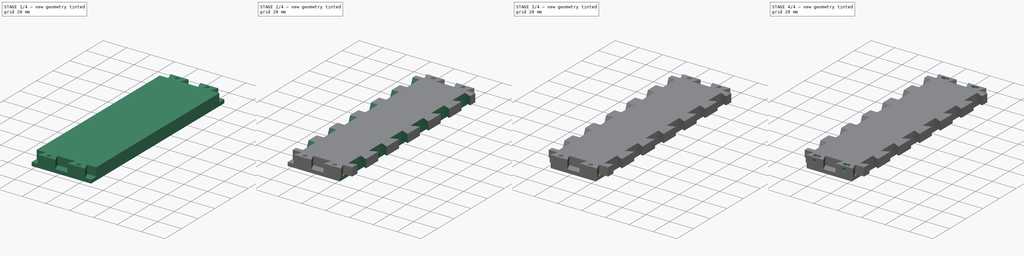
[diagram: build sequence overview — one tinted view per stage of 4, left to right]
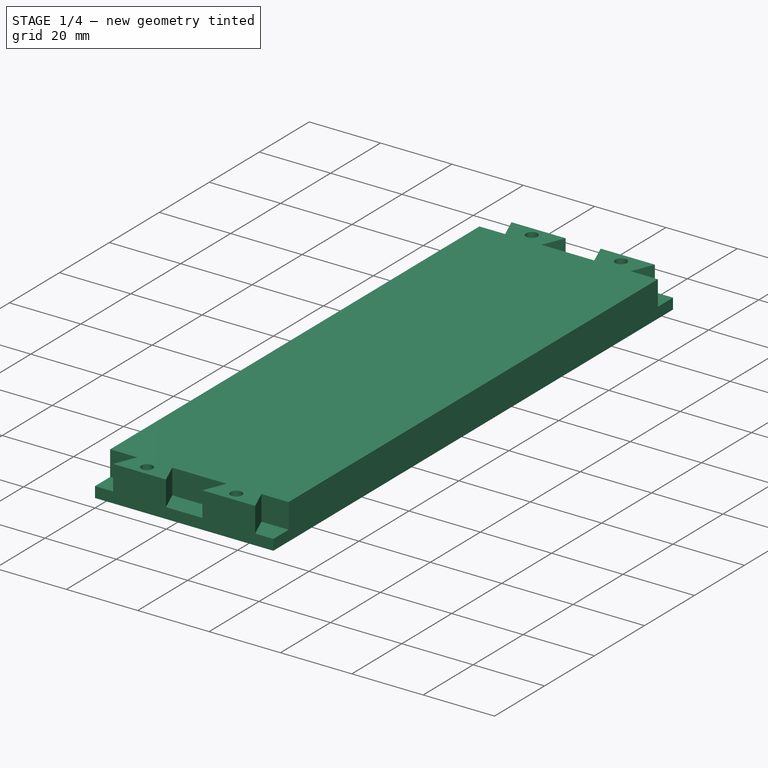
[diagram: stage 1 of 4 — iso view after this stage's code; geometry added in this stage tinted green]
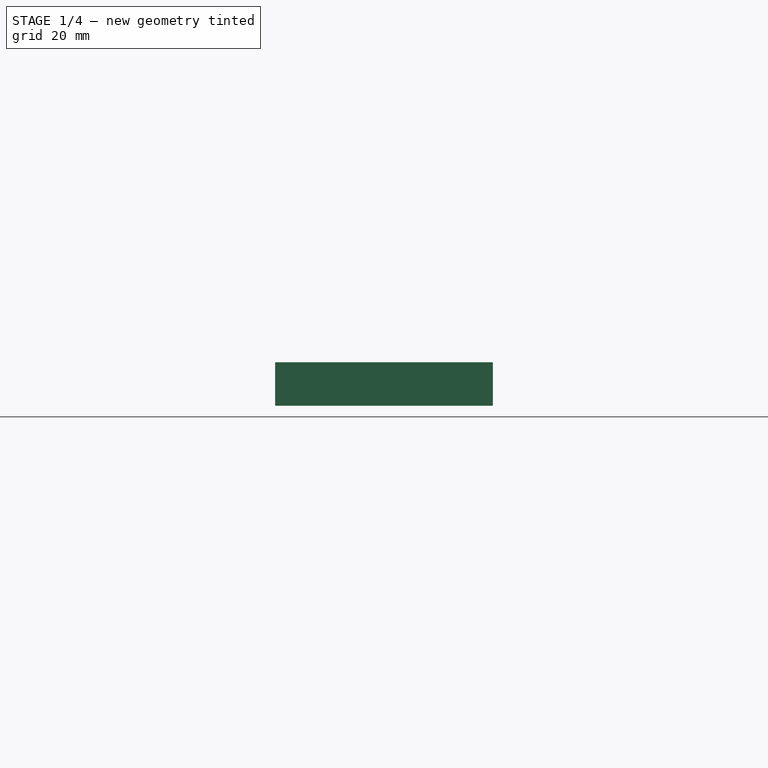
[diagram: stage 1 of 4 — front view after this stage's code; geometry added in this stage tinted green]
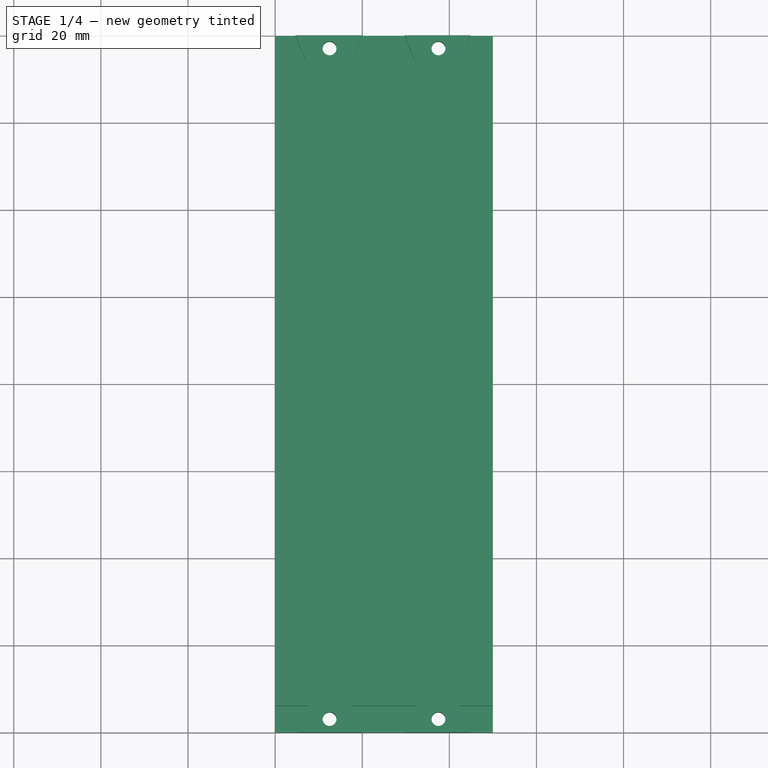
[diagram: stage 1 of 4 — top view after this stage's code; geometry added in this stage tinted green]
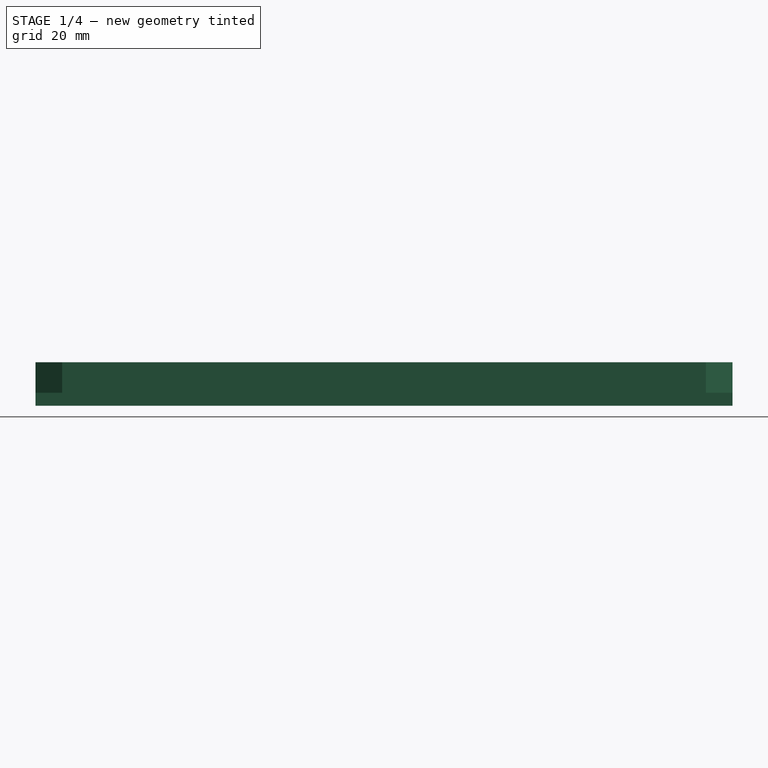
[diagram: stage 1 of 4 — right view after this stage's code; geometry added in this stage tinted green]
FCSTD DOCUMENT  (FreeCAD 0.17R13541 (Git))
Label: cross_beam_160
License: All rights reserved
LicenseURL: http://en.wikipedia.org/wiki/All_rights_reserved
objects: Sketcher::SketchObject×11, PartDesign::Pocket×10, PartDesign::Pad×1, PartDesign::Body×1
note: 34 computed .brp shape members not serialized (recipe doc carries the construction recipe); baked Part::Feature solids carry a one-line shape summary decoded from their .brp

FEATURE [Sketcher::SketchObject] Sketch
  MapMode = 5
  Support = -> [XY_Plane]
  sketch-geometry (4):
    g0: LineSegment StartX=0 StartY=160 StartZ=0 EndX=50 EndY=160 EndZ=0
    g1: LineSegment StartX=50 StartY=160 StartZ=0 EndX=50 EndY=0 EndZ=0
    g2: LineSegment StartX=50 StartY=0 StartZ=0 EndX=0 EndY=0 EndZ=0
    g3: LineSegment StartX=0 StartY=0 StartZ=0 EndX=0 EndY=160 EndZ=0
  constraints (11):
    c: Coincident(g0,g1)
    c: Coincident(g1,g2)
    c: Coincident(g2,g3)
    c: Coincident(g3,g0)
    c: Horizontal(g0)
    c: Horizontal(g2)
    c: Vertical(g1)
    c: Vertical(g3)
    c: Coincident(g2,g-1)
    c: DistanceX(g0,g0) = 50
    c: DistanceY(g3,g3) = 160
FEATURE [PartDesign::Pad] Pad
  Length = 10
  Length2 = 100
  Profile = -> Sketch
  Type = 0
FEATURE [Sketcher::SketchObject] Sketch001
  ExternalGeometry = -> [Pad]
  MapMode = 5
  Placement = pos=(0,0,10) rot=(0,0,1;0rad)
  Support = -> [Pad]
  sketch-geometry (24):
    g0: LineSegment StartX=17.4 StartY=6.1 StartZ=0 EndX=32.6 EndY=6.1 EndZ=0
    g1: LineSegment StartX=19.9 StartY=0 StartZ=0 EndX=30.1 EndY=0 EndZ=0
    g2: LineSegment StartX=17.4 StartY=6.1 StartZ=0 EndX=19.9 EndY=0 EndZ=0
    g3: LineSegment StartX=32.6 StartY=6.1 StartZ=0 EndX=30.1 EndY=0 EndZ=0
    g4: LineSegment StartX=42.4 StartY=6.1 StartZ=0 EndX=57.6 EndY=6.1 EndZ=0
    g5: LineSegment StartX=44.9 StartY=0 StartZ=0 EndX=55.1 EndY=0 EndZ=0
    g6: LineSegment StartX=42.4 StartY=6.1 StartZ=0 EndX=44.9 EndY=0 EndZ=0
    g7: LineSegment StartX=57.6 StartY=6.1 StartZ=0 EndX=55.1 EndY=0 EndZ=0
    g8: LineSegment StartX=-7.6 StartY=6.1 StartZ=0 EndX=7.6 EndY=6.1 EndZ=0
    g9: LineSegment StartX=-5.1 StartY=0 StartZ=0 EndX=5.1 EndY=0 EndZ=0
    g10: LineSegment StartX=-7.6 StartY=6.1 StartZ=0 EndX=-5.1 EndY=0 EndZ=0
    g11: LineSegment StartX=7.6 StartY=6.1 StartZ=0 EndX=5.1 EndY=0 EndZ=0
    g12: LineSegment StartX=32.2 StartY=153.9 StartZ=0 EndX=17.4 EndY=153.9 EndZ=0
    g13: LineSegment StartX=29.7 StartY=160 StartZ=0 EndX=19.9 EndY=160 EndZ=0
    g14: LineSegment StartX=32.2 StartY=153.9 StartZ=0 EndX=29.7 EndY=160 EndZ=0
    g15: LineSegment StartX=17.4 StartY=153.9 StartZ=0 EndX=19.9 EndY=160 EndZ=0
    g16: LineSegment StartX=7.2 StartY=153.9 StartZ=0 EndX=-7.6 EndY=153.9 EndZ=0
    g17: LineSegment StartX=4.7 StartY=160 StartZ=0 EndX=-5.1 EndY=160 EndZ=0
    g18: LineSegment StartX=7.2 StartY=153.9 StartZ=0 EndX=4.7 EndY=160 EndZ=0
    g19: LineSegment StartX=-7.6 StartY=153.9 StartZ=0 EndX=-5.1 EndY=160 EndZ=0
    g20: LineSegment StartX=57.2 StartY=153.9 StartZ=0 EndX=42.4 EndY=153.9 EndZ=0
    g21: LineSegment StartX=54.7 StartY=160 StartZ=0 EndX=44.9 EndY=160 EndZ=0
    g22: LineSegment StartX=57.2 StartY=153.9 StartZ=0 EndX=54.7 EndY=160 EndZ=0
    g23: LineSegment StartX=42.4 StartY=153.9 StartZ=0 EndX=44.9 EndY=160 EndZ=0
  constraints (73):
    c: Horizontal(g0)
    c: Horizontal(g1)
    c: Coincident(g0,g2)
    c: Coincident(g0,g3)
    c: Coincident(g1,g2)
    c: Coincident(g1,g3)
    c: DistanceX(g0,g0) = 15.2
    c: DistanceX(g1,g1) = 10.2
    c: DistanceY(g1,g0) = 6.1
    c: Equal(g3,g2)
    c: Horizontal(g4)
    c: Horizontal(g5)
    c: Coincident(g4,g6)
    c: Coincident(g4,g7)
    c: Coincident(g5,g6)
    c: Coincident(g5,g7)
    c: Equal(g0,g4) = 15.2
    c: Equal(g1,g5) = 10.2
    c: DistanceY(g5,g4) = 6.1
    c: Equal(g7,g6)
    c: Horizontal(g8)
    c: Horizontal(g9)
    c: Coincident(g8,g10)
    c: Coincident(g8,g11)
    c: Coincident(g9,g10)
    c: Coincident(g9,g11)
    c: Equal(g0,g8) = 15.2
    c: Equal(g1,g9) = 10.2
    c: DistanceY(g9,g8) = 6.1
    c: Equal(g11,g10)
    c: PointOnObject(g9,g-1)
    c: PointOnObject(g1,g-1)
    c: PointOnObject(g5,g-1)
    c: DistanceX(g0,g4) = 9.8
    c: DistanceX(g8,g0) = 9.8
    c: DistanceX(g-1,g1) = 19.9
    c: Horizontal(g12)
    c: Horizontal(g13)
    c: Coincident(g12,g14)
    c: Coincident(g12,g15)
    c: Coincident(g13,g14)
    c: Coincident(g13,g15)
    c: Horizontal(g16)
    c: Horizontal(g17)
    c: Coincident(g16,g18)
    c: Coincident(g16,g19)
    c: Coincident(g17,g18)
    c: Coincident(g17,g19)
    c: Equal(g12,g16) = 15.2
    c: Equal(g13,g17) = 10.2
    c: Horizontal(g20)
    c: Horizontal(g21)
    c: Coincident(g20,g22)
    c: Coincident(g20,g23)
    c: Coincident(g21,g22)
    c: Coincident(g21,g23)
    c: Equal(g12,g20) = 15.2
    c: Equal(g13,g21) = 10.2
    c: PointOnObject(g17,g-4)
    c: PointOnObject(g13,g-4)
    c: PointOnObject(g21,g-4)
    c: DistanceX(g17,g13) = 15.2
    c: DistanceX(g13,g21) = 15.2
    c: DistanceX(g12,g20) = 10.2
    c: DistanceX(g16,g12) = 10.2
    c: Equal(g19,g18)
    c: Equal(g18,g15)
    c: Equal(g15,g14)
    c: Equal(g14,g23)
    c: Equal(g23,g22)
    c: DistanceY(g16,g-4) = 6.1
    c: DistanceX(g17,g17) = 9.8
    c: DistanceX(g-4,g13) = 19.9
FEATURE [PartDesign::Pocket] Pocket
  BaseFeature = -> Pad
  Length = 7
  Length2 = 100
  Profile = -> Sketch001
  Type = 0
FEATURE [Sketcher::SketchObject] Sketch003
  MapMode = 5
  Placement = pos=(0,0,10) rot=(0,0,1;0rad)
  sketch-geometry (4):
    g0: Circle CenterX=12.5 CenterY=157 CenterZ=0 NormalX=0 NormalY=0 NormalZ=1 AngleXU=0 Radius=1.6
    g1: Circle CenterX=37.5 CenterY=157 CenterZ=0 NormalX=0 NormalY=0 NormalZ=1 AngleXU=0 Radius=1.6
    g2: Circle CenterX=12.5 CenterY=3 CenterZ=0 NormalX=0 NormalY=0 NormalZ=1 AngleXU=0 Radius=1.6
    g3: Circle CenterX=37.5 CenterY=3 CenterZ=0 NormalX=0 NormalY=0 NormalZ=1 AngleXU=0 Radius=1.6
  constraints (10):
    c: Radius(g2) = 1.6
    c: Equal(g2,g3)
    c: Equal(g2,g0)
    c: Equal(g2,g1)
    c: Horizontal(g2,g3)
    c: Horizontal(g0,g1)
    c: DistanceX(g0,g1) = 25
    c: DistanceX(g2,g3) = 25
    c: DistanceY(g-1,g2) = 3
    c: DistanceX(g-1,g2) = 12.5
FEATURE [PartDesign::Pocket] Pocket002
  BaseFeature = -> Pocket
  Length = 10
  Length2 = 100
  Profile = -> Sketch003
  Type = 0
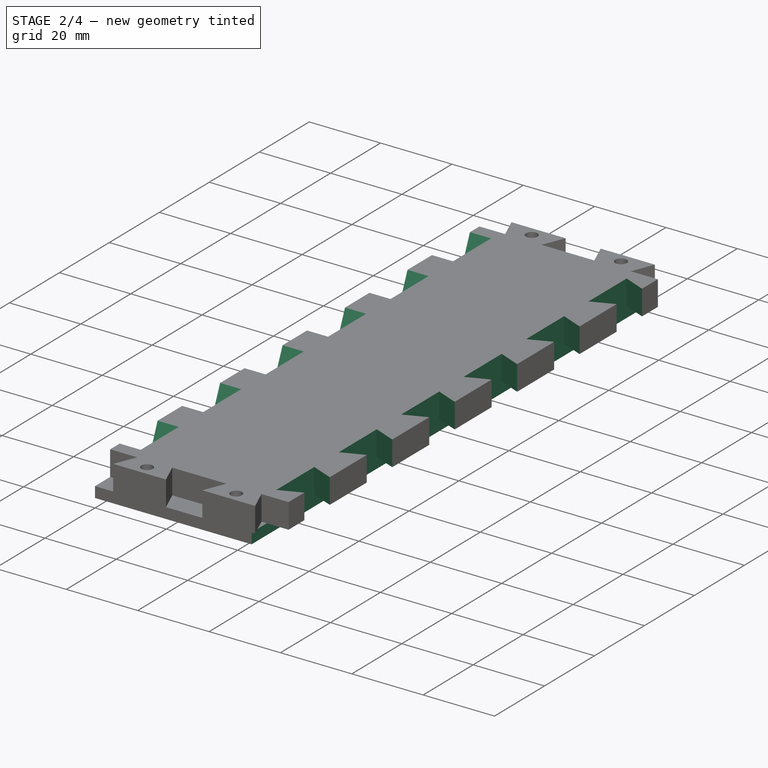
[diagram: stage 2 of 4 — iso view after this stage's code; geometry added in this stage tinted green]
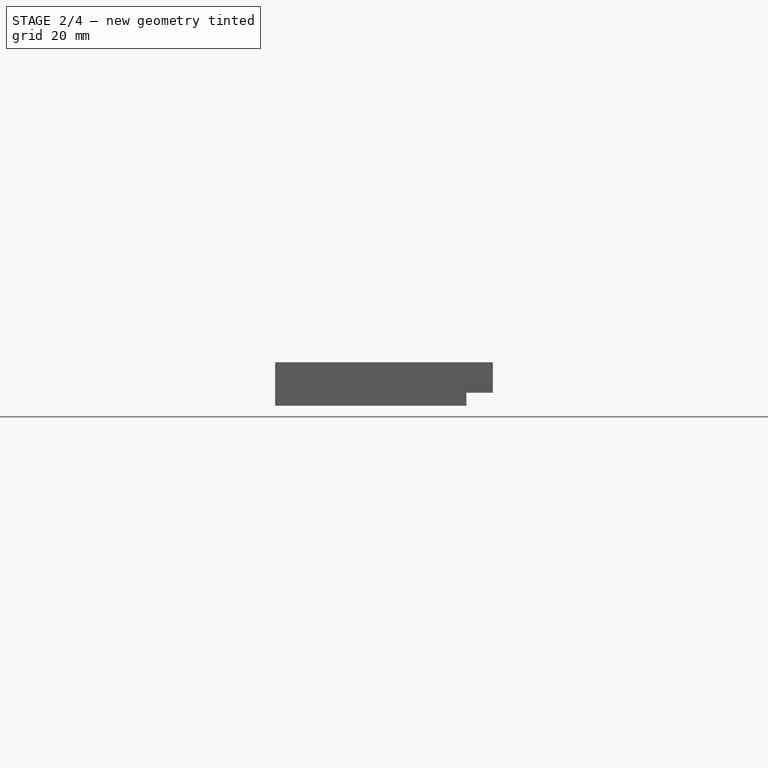
[diagram: stage 2 of 4 — front view after this stage's code; geometry added in this stage tinted green]
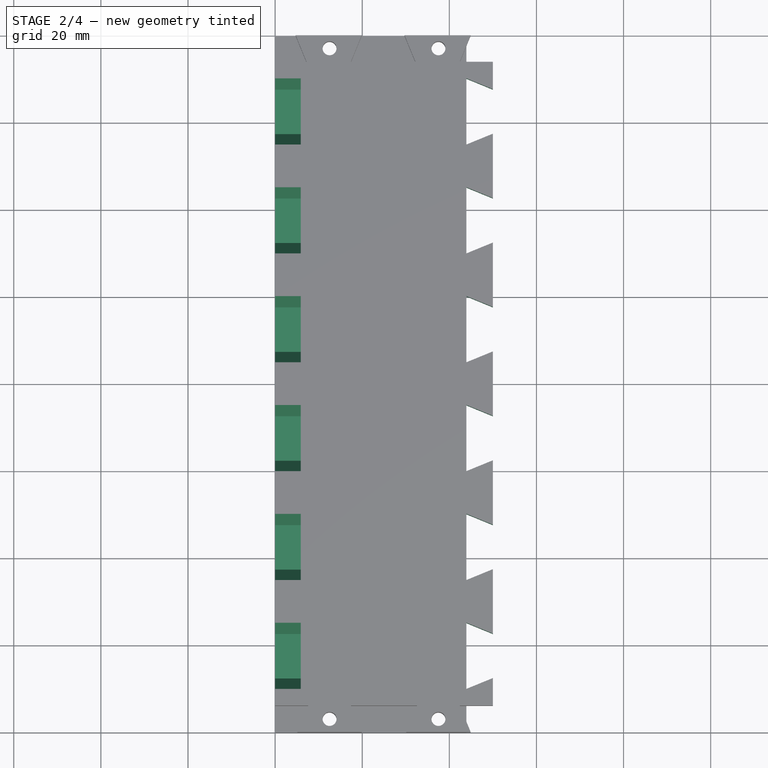
[diagram: stage 2 of 4 — top view after this stage's code; geometry added in this stage tinted green]
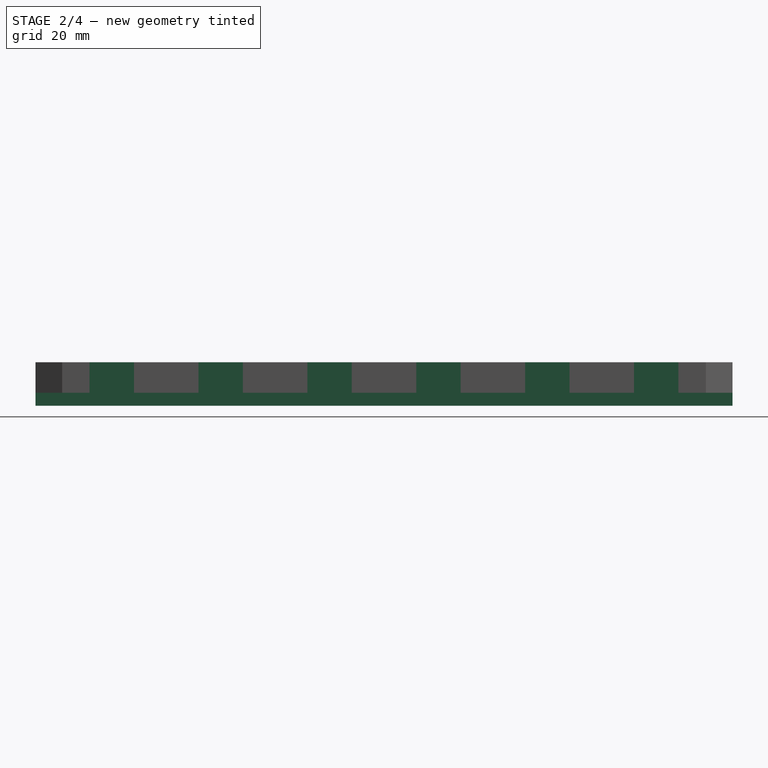
[diagram: stage 2 of 4 — right view after this stage's code; geometry added in this stage tinted green]
FEATURE [Sketcher::SketchObject] Sketch004
  MapMode = 5
  Placement = pos=(0,0,0) rot=(1,0,0;3.14159rad)
  Support = -> [Pocket002]
  sketch-geometry (24):
    g0: LineSegment StartX=43.9 StartY=-84.9 StartZ=0 EndX=43.9 EndY=-100.1 EndZ=0
    g1: LineSegment StartX=50 StartY=-87.4 StartZ=0 EndX=50 EndY=-97.6 EndZ=0
    g2: LineSegment StartX=43.9 StartY=-100.1 StartZ=0 EndX=50 EndY=-97.6 EndZ=0
    g3: LineSegment StartX=43.9 StartY=-84.9 StartZ=0 EndX=50 EndY=-87.4 EndZ=0
    g4: LineSegment StartX=43.9 StartY=-59.9 StartZ=0 EndX=43.9 EndY=-75.1 EndZ=0
    g5: LineSegment StartX=50 StartY=-62.4 StartZ=0 EndX=50 EndY=-72.6 EndZ=0
    g6: LineSegment StartX=43.9 StartY=-75.1 StartZ=0 EndX=50 EndY=-72.6 EndZ=0
    g7: LineSegment StartX=43.9 StartY=-59.9 StartZ=0 EndX=50 EndY=-62.4 EndZ=0
    g8: LineSegment StartX=43.9 StartY=-34.9 StartZ=0 EndX=43.9 EndY=-50.1 EndZ=0
    g9: LineSegment StartX=50 StartY=-37.4 StartZ=0 EndX=50 EndY=-47.6 EndZ=0
    g10: LineSegment StartX=43.9 StartY=-50.1 StartZ=0 EndX=50 EndY=-47.6 EndZ=0
    g11: LineSegment StartX=43.9 StartY=-34.9 StartZ=0 EndX=50 EndY=-37.4 EndZ=0
    g12: LineSegment StartX=43.9 StartY=-9.9 StartZ=0 EndX=43.9 EndY=-25.1 EndZ=0
    g13: LineSegment StartX=50 StartY=-12.4 StartZ=0 EndX=50 EndY=-22.6 EndZ=0
    g14: LineSegment StartX=43.9 StartY=-25.1 StartZ=0 EndX=50 EndY=-22.6 EndZ=0
    g15: LineSegment StartX=43.9 StartY=-9.9 StartZ=0 EndX=50 EndY=-12.4 EndZ=0
    g16: LineSegment StartX=43.9 StartY=-134.9 StartZ=0 EndX=43.9 EndY=-150.1 EndZ=0
    g17: LineSegment StartX=50 StartY=-137.4 StartZ=0 EndX=50 EndY=-147.6 EndZ=0
    g18: LineSegment StartX=43.9 StartY=-150.1 StartZ=0 EndX=50 EndY=-147.6 EndZ=0
    g19: LineSegment StartX=43.9 StartY=-134.9 StartZ=0 EndX=50 EndY=-137.4 EndZ=0
    g20: LineSegment StartX=43.9 StartY=-109.9 StartZ=0 EndX=43.9 EndY=-125.1 EndZ=0
    g21: LineSegment StartX=50 StartY=-112.4 StartZ=0 EndX=50 EndY=-122.6 EndZ=0
    g22: LineSegment StartX=43.9 StartY=-125.1 StartZ=0 EndX=50 EndY=-122.6 EndZ=0
    g23: LineSegment StartX=43.9 StartY=-109.9 StartZ=0 EndX=50 EndY=-112.4 EndZ=0
  constraints (72):
    c: Vertical(g0)
    c: Vertical(g1)
    c: Coincident(g0,g3)
    c: Coincident(g1,g3)
    c: Coincident(g0,g2)
    c: Coincident(g1,g2)
    c: Equal(g2,g3)
    c: DistanceY(g0,g0) = 15.2
    c: DistanceY(g1,g1) = 10.2
    c: DistanceX(g0,g1) = 6.1
    c: Vertical(g4)
    c: Vertical(g5)
    c: Coincident(g4,g7)
    c: Coincident(g5,g7)
    c: Coincident(g4,g6)
    c: Coincident(g5,g6)
    c: Equal(g6,g7)
    c: Equal(g0,g4) = 15.2
    c: Equal(g1,g5) = 10.2
    c: DistanceX(g4,g5) = 6.1
    c: DistanceY(g1,g5) = 25
    c: DistanceX(g5,g1) = 0
    c: Vertical(g8)
    c: Vertical(g9)
    c: Coincident(g8,g11)
    c: Coincident(g9,g11)
    c: Coincident(g8,g10)
    c: Coincident(g9,g10)
    c: Equal(g10,g11)
    c: Equal(g0,g8) = 15.2
    c: Equal(g1,g9) = 10.2
    c: DistanceX(g8,g9) = 6.1
    c: Vertical(g12)
    c: Vertical(g13)
    c: Coincident(g12,g15)
    c: Coincident(g13,g15)
    c: Coincident(g12,g14)
    c: Coincident(g13,g14)
    c: Equal(g14,g15)
    c: Equal(g8,g12) = 15.2
    c: Equal(g9,g13) = 10.2
    c: DistanceX(g12,g13) = 6.1
    c: DistanceY(g9,g13) = 25
    c: DistanceX(g13,g9) = 0
    c: DistanceY(g5,g9) = 25
    c: Vertical(g16)
    c: Vertical(g17)
    c: Coincident(g16,g19)
    c: Coincident(g17,g19)
    c: Coincident(g16,g18)
    c: Coincident(g17,g18)
    c: Equal(g18,g19)
    c: Equal(g0,g16) = 15.2
    c: Equal(g1,g17) = 10.2
    c: DistanceX(g16,g17) = 6.1
    c: Vertical(g20)
    c: Vertical(g21)
    c: Coincident(g20,g23)
    c: Coincident(g21,g23)
    c: Coincident(g20,g22)
    c: Coincident(g21,g22)
    c: Equal(g22,g23)
    c: Equal(g16,g20) = 15.2
    c: Equal(g17,g21) = 10.2
    c: DistanceX(g20,g21) = 6.1
    c: DistanceY(g17,g21) = 25
    c: DistanceX(g21,g17) = 0
    c: DistanceY(g21,g1) = 25
    c: DistanceX(g9,g5) = 0
    c: DistanceX(g1,g21) = 0
    c: DistanceX(g-1,g13) = 50
    c: DistanceY(g4,g-1) = 75.1
FEATURE [PartDesign::Pocket] Pocket003
  BaseFeature = -> Pocket002
  Length = 10
  Length2 = 100
  Profile = -> Sketch004
  Type = 0
FEATURE [Sketcher::SketchObject] Sketch005
  MapMode = 5
  Placement = pos=(0,0,0) rot=(1,0,0;3.14159rad)
  Support = -> [Pocket003]
  sketch-geometry (4):
    g0: LineSegment StartX=43.9 StartY=0 StartZ=0 EndX=50 EndY=0 EndZ=0
    g1: LineSegment StartX=50 StartY=0 StartZ=0 EndX=50 EndY=-160 EndZ=0
    g2: LineSegment StartX=50 StartY=-160 StartZ=0 EndX=43.9 EndY=-160 EndZ=0
    g3: LineSegment StartX=43.9 StartY=-160 StartZ=0 EndX=43.9 EndY=0 EndZ=0
  constraints (12):
    c: Coincident(g0,g1)
    c: Coincident(g1,g2)
    c: Coincident(g2,g3)
    c: Coincident(g3,g0)
    c: Horizontal(g0)
    c: Horizontal(g2)
    c: Vertical(g1)
    c: Vertical(g3)
    c: DistanceX(g0,g0) = 6.1
    c: DistanceY(g3,g3) = 160
    c: DistanceX(g-1,g0) = 50
    c: PointOnObject(g-1,g0)
FEATURE [PartDesign::Pocket] Pocket004
  BaseFeature = -> Pocket003
  Length = 3
  Length2 = 100
  Profile = -> Sketch005
  Type = 0
FEATURE [Sketcher::SketchObject] Sketch006
  MapMode = 5
  Placement = pos=(0,0,0) rot=(0.57735,-0.57735,-0.57735;2.0944rad)
  Support = -> [Pocket004]
  sketch-geometry (24):
    g0: LineSegment StartX=-100.1 StartY=10 StartZ=0 EndX=-84.9 EndY=10 EndZ=0
    g1: LineSegment StartX=-97.6 StartY=4.1 StartZ=0 EndX=-87.4 EndY=4.1 EndZ=0
    g2: LineSegment StartX=-87.4 StartY=4.1 StartZ=0 EndX=-84.9 EndY=10 EndZ=0
    g3: LineSegment StartX=-100.1 StartY=10 StartZ=0 EndX=-97.6 EndY=4.1 EndZ=0
    g4: LineSegment StartX=-75.1 StartY=10 StartZ=0 EndX=-59.9 EndY=10 EndZ=0
    g5: LineSegment StartX=-72.6 StartY=4.1 StartZ=0 EndX=-62.4 EndY=4.1 EndZ=0
    g6: LineSegment StartX=-62.4 StartY=4.1 StartZ=0 EndX=-59.9 EndY=10 EndZ=0
    g7: LineSegment StartX=-75.1 StartY=10 StartZ=0 EndX=-72.6 EndY=4.1 EndZ=0
    g8: LineSegment StartX=-150.1 StartY=10 StartZ=0 EndX=-134.9 EndY=10 EndZ=0
    g9: LineSegment StartX=-147.6 StartY=4.1 StartZ=0 EndX=-137.4 EndY=4.1 EndZ=0
    g10: LineSegment StartX=-137.4 StartY=4.1 StartZ=0 EndX=-134.9 EndY=10 EndZ=0
    g11: LineSegment StartX=-150.1 StartY=10 StartZ=0 EndX=-147.6 EndY=4.1 EndZ=0
    g12: LineSegment StartX=-125.1 StartY=10 StartZ=0 EndX=-109.9 EndY=10 EndZ=0
    g13: LineSegment StartX=-122.6 StartY=4.1 StartZ=0 EndX=-112.4 EndY=4.1 EndZ=0
    g14: LineSegment StartX=-112.4 StartY=4.1 StartZ=0 EndX=-109.9 EndY=10 EndZ=0
    g15: LineSegment StartX=-125.1 StartY=10 StartZ=0 EndX=-122.6 EndY=4.1 EndZ=0
    g16: LineSegment StartX=-50.1 StartY=10 StartZ=0 EndX=-34.9 EndY=10 EndZ=0
    g17: LineSegment StartX=-47.6 StartY=4.1 StartZ=0 EndX=-37.4 EndY=4.1 EndZ=0
    g18: LineSegment StartX=-37.4 StartY=4.1 StartZ=0 EndX=-34.9 EndY=10 EndZ=0
    g19: LineSegment StartX=-50.1 StartY=10 StartZ=0 EndX=-47.6 EndY=4.1 EndZ=0
    g20: LineSegment StartX=-25.1 StartY=10 StartZ=0 EndX=-9.9 EndY=10 EndZ=0
    g21: LineSegment StartX=-22.6 StartY=4.1 StartZ=0 EndX=-12.4 EndY=4.1 EndZ=0
    g22: LineSegment StartX=-12.4 StartY=4.1 StartZ=0 EndX=-9.9 EndY=10 EndZ=0
    g23: LineSegment StartX=-25.1 StartY=10 StartZ=0 EndX=-22.6 EndY=4.1 EndZ=0
  constraints (72):
    c: Horizontal(g0)
    c: Horizontal(g1)
    c: Coincident(g0,g3)
    c: Coincident(g0,g2)
    c: Coincident(g1,g3)
    c: Coincident(g1,g2)
    c: DistanceX(g0,g0) = 15.2
    c: DistanceX(g1,g1) = 10.2
    c: Equal(g3,g2)
    c: DistanceY(g1,g0) = 5.9
    c: Horizontal(g4)
    c: Horizontal(g5)
    c: Coincident(g4,g7)
    c: Coincident(g4,g6)
    c: Coincident(g5,g7)
    c: Coincident(g5,g6)
    c: Equal(g0,g4) = 15.2
    c: Equal(g1,g5) = 10.2
    c: Equal(g7,g6)
    c: DistanceY(g5,g4) = 5.9
    c: DistanceY(g4,g0) = 0
    c: DistanceX(g0,g4) = 25
    c: Horizontal(g8)
    c: Horizontal(g9)
    c: Coincident(g8,g11)
    c: Coincident(g8,g10)
    c: Coincident(g9,g11)
    c: Coincident(g9,g10)
    c: Equal(g0,g8) = 15.2
    c: Equal(g1,g9) = 10.2
    c: Equal(g11,g10)
    c: DistanceY(g9,g8) = 5.9
    c: Horizontal(g12)
    c: Horizontal(g13)
    c: Coincident(g12,g15)
    c: Coincident(g12,g14)
    c: Coincident(g13,g15)
    c: Coincident(g13,g14)
    c: Equal(g8,g12) = 15.2
    c: Equal(g9,g13) = 10.2
    c: Equal(g15,g14)
    c: DistanceY(g13,g12) = 5.9
    c: DistanceY(g12,g8) = 0
    c: DistanceX(g8,g12) = 25
    c: Horizontal(g16)
    c: Horizontal(g17)
    c: Coincident(g16,g19)
    c: Coincident(g16,g18)
    c: Coincident(g17,g19)
    c: Coincident(g17,g18)
    c: Equal(g0,g16) = 15.2
    c: Equal(g1,g17) = 10.2
    c: Equal(g19,g18)
    c: DistanceY(g17,g16) = 5.9
    c: Horizontal(g20)
    c: Horizontal(g21)
    c: Coincident(g20,g23)
    c: Coincident(g20,g22)
    c: Coincident(g21,g23)
    c: Coincident(g21,g22)
    c: Equal(g16,g20) = 15.2
    c: Equal(g17,g21) = 10.2
    c: Equal(g23,g22)
    c: DistanceY(g21,g20) = 5.9
    c: DistanceY(g20,g16) = 0
    c: DistanceX(g16,g20) = 25
    c: DistanceX(g12,g0) = 25
    c: DistanceY(g12,g0) = 0
    c: DistanceX(g4,g16) = 25
    c: DistanceY(g16,g4) = 0
    c: DistanceY(g-1,g20) = 10
    c: DistanceX(g4,g-1) = 75.1
FEATURE [PartDesign::Pocket] Pocket005
  BaseFeature = -> Pocket004
  Length = 5.9
  Length2 = 100
  Profile = -> Sketch006
  Type = 0
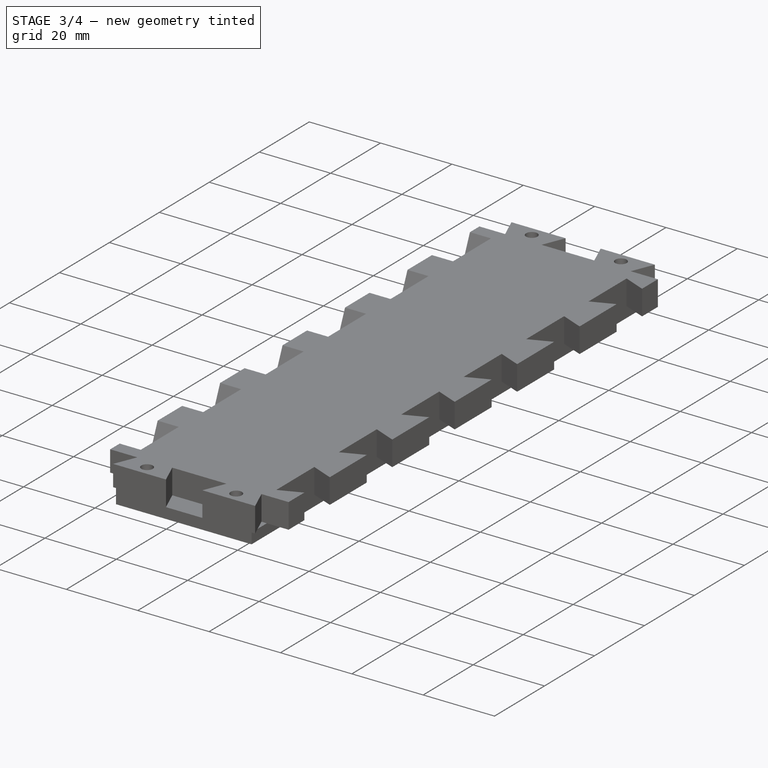
[diagram: stage 3 of 4 — iso view after this stage's code; geometry added in this stage tinted green]
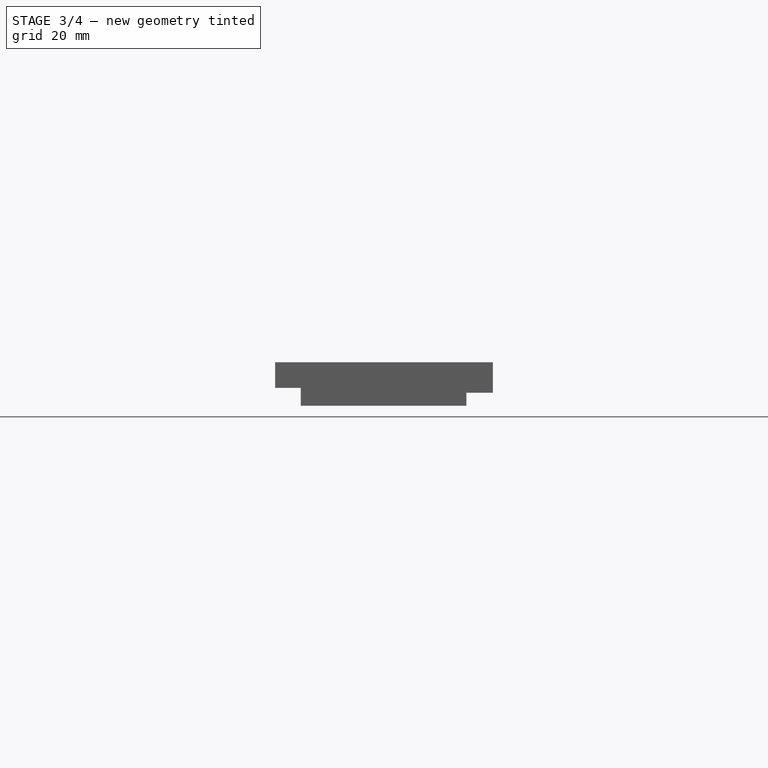
[diagram: stage 3 of 4 — front view after this stage's code; geometry added in this stage tinted green]
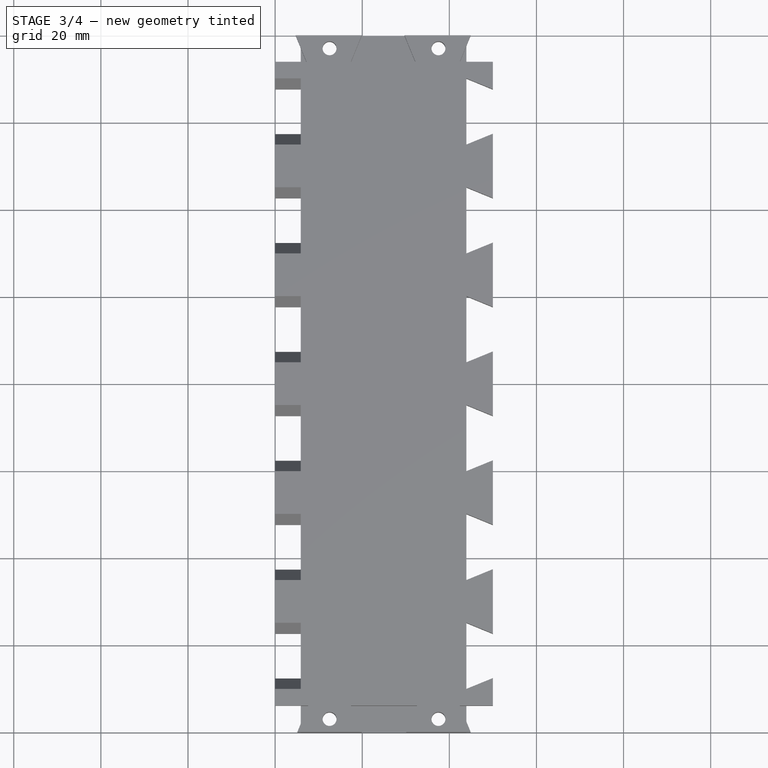
[diagram: stage 3 of 4 — top view after this stage's code; geometry added in this stage tinted green]
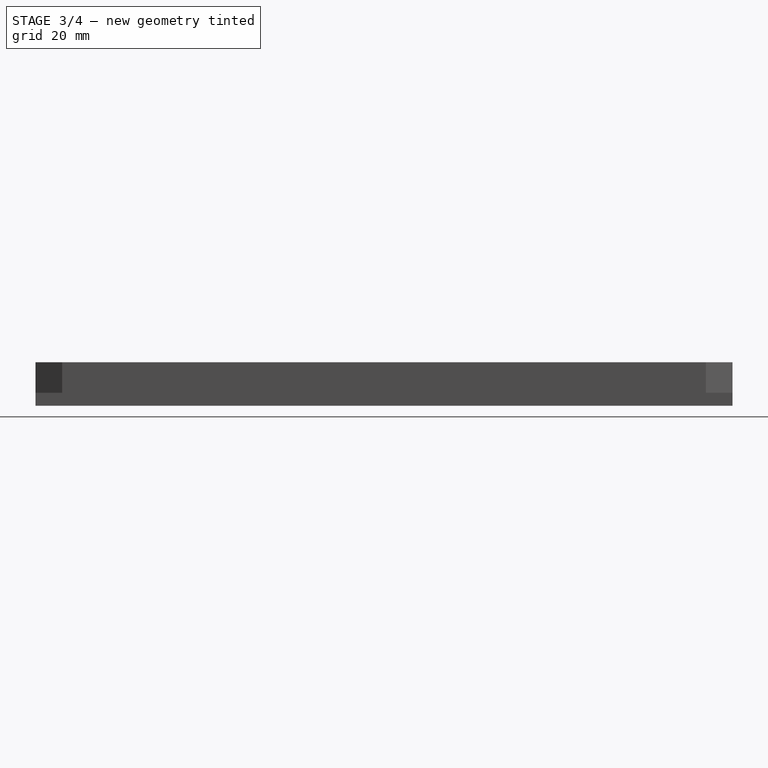
[diagram: stage 3 of 4 — right view after this stage's code; geometry added in this stage tinted green]
FEATURE [Sketcher::SketchObject] Sketch007
  MapMode = 5
  Placement = pos=(0,0,0) rot=(0.57735,-0.57735,-0.57735;2.0944rad)
  Support = -> [Pocket005]
  sketch-geometry (4):
    g0: LineSegment StartX=-160 StartY=4.1 StartZ=0 EndX=0 EndY=4.1 EndZ=0
    g1: LineSegment StartX=0 StartY=4.1 StartZ=0 EndX=0 EndY=0 EndZ=0
    g2: LineSegment StartX=0 StartY=0 StartZ=0 EndX=-160 EndY=0 EndZ=0
    g3: LineSegment StartX=-160 StartY=0 StartZ=0 EndX=-160 EndY=4.1 EndZ=0
  constraints (11):
    c: Coincident(g0,g1)
    c: Coincident(g1,g2)
    c: Coincident(g2,g3)
    c: Coincident(g3,g0)
    c: Horizontal(g0)
    c: Horizontal(g2)
    c: Vertical(g1)
    c: Vertical(g3)
    c: DistanceX(g2,g2) = 160
    c: DistanceY(g3,g3) = 4.1
    c: Coincident(g1,g-1)
FEATURE [PartDesign::Pocket] Pocket006
  BaseFeature = -> Pocket005
  Length = 5.9
  Length2 = 100
  Profile = -> Sketch007
  Type = 0
FEATURE [Sketcher::SketchObject] Sketch008
  MapMode = 5
  Placement = pos=(0,0,0) rot=(1,0,0;3.14159rad)
  Support = -> [Pocket006]
  sketch-geometry (4):
    g0: LineSegment StartX=10 StartY=-10 StartZ=0 EndX=40 EndY=-10 EndZ=0
    g1: LineSegment StartX=40 StartY=-10 StartZ=0 EndX=40 EndY=-150 EndZ=0
    g2: LineSegment StartX=40 StartY=-150 StartZ=0 EndX=10 EndY=-150 EndZ=0
    g3: LineSegment StartX=10 StartY=-150 StartZ=0 EndX=10 EndY=-10 EndZ=0
  constraints (12):
    c: Coincident(g0,g1)
    c: Coincident(g1,g2)
    c: Coincident(g2,g3)
    c: Coincident(g3,g0)
    c: Horizontal(g0)
    c: Horizontal(g2)
    c: Vertical(g1)
    c: Vertical(g3)
    c: DistanceX(g0,g0) = 30
    c: DistanceY(g3,g3) = 140
    c: DistanceX(g-1,g0) = 10
    c: DistanceY(g0,g-1) = 10
FEATURE [PartDesign::Pocket] Pocket007
  BaseFeature = -> Pocket006
  Length = 7
  Length2 = 100
  Profile = -> Sketch008
  Type = 0
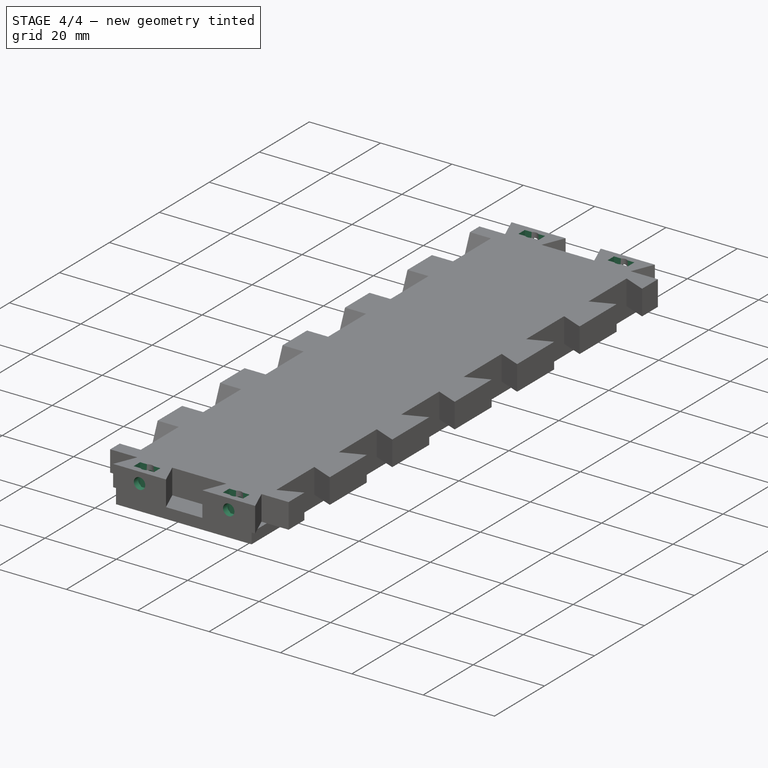
[diagram: stage 4 of 4 — iso view after this stage's code; geometry added in this stage tinted green]
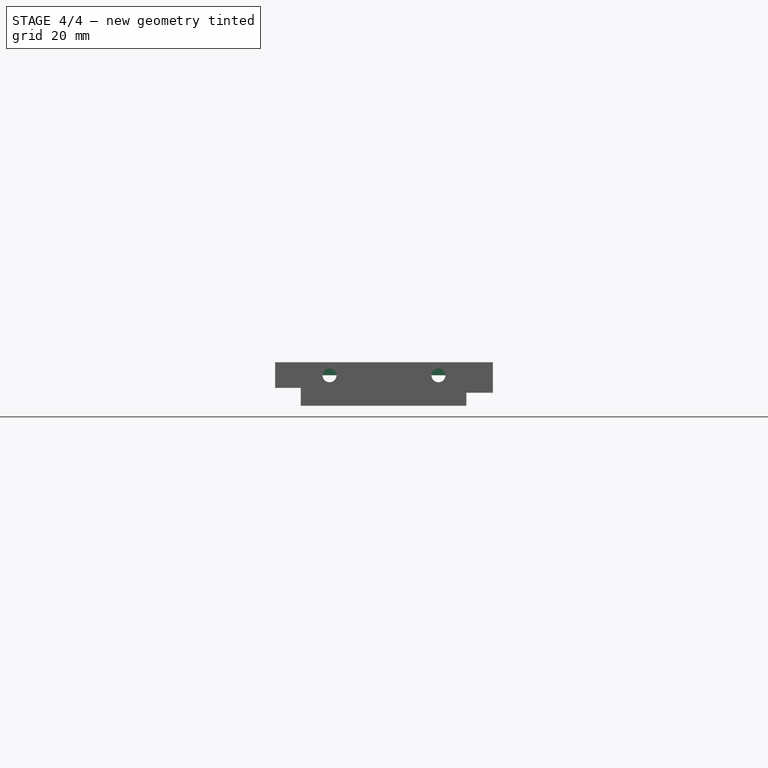
[diagram: stage 4 of 4 — front view after this stage's code; geometry added in this stage tinted green]
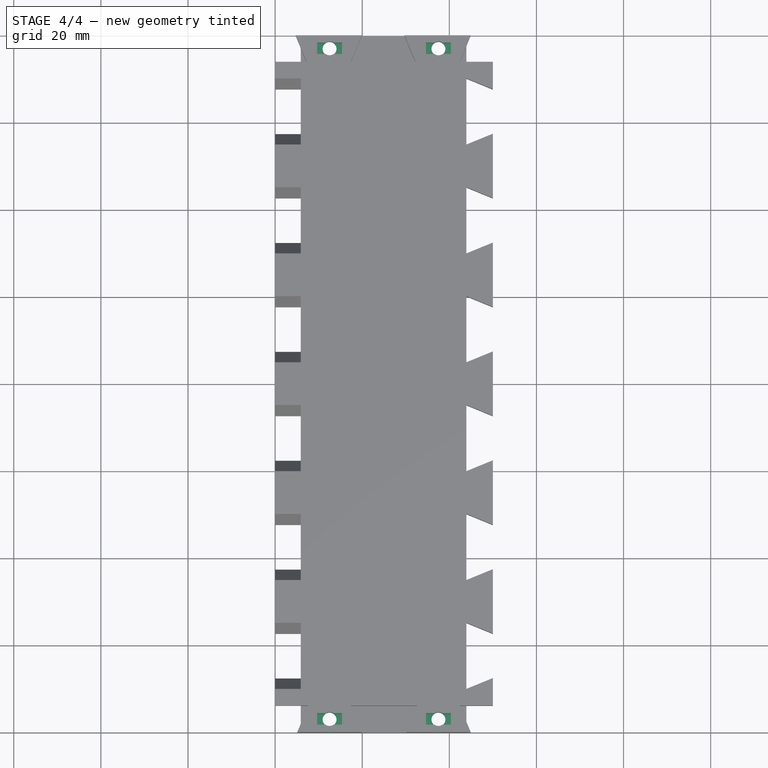
[diagram: stage 4 of 4 — top view after this stage's code; geometry added in this stage tinted green]
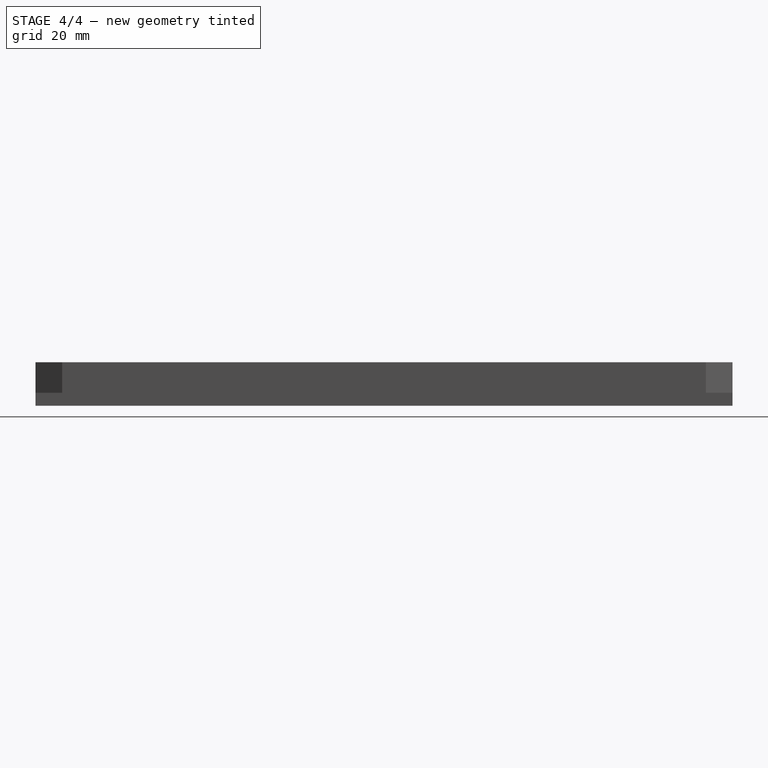
[diagram: stage 4 of 4 — right view after this stage's code; geometry added in this stage tinted green]
FEATURE [Sketcher::SketchObject] Sketch009
  MapMode = 5
  Placement = pos=(0,0,10) rot=(0,0,1;0rad)
  Support = -> [Pocket007]
  sketch-geometry (16):
    g0: LineSegment StartX=9.65 StartY=158.3 StartZ=0 EndX=15.35 EndY=158.3 EndZ=0
    g1: LineSegment StartX=15.35 StartY=158.3 StartZ=0 EndX=15.35 EndY=155.7 EndZ=0
    g2: LineSegment StartX=15.35 StartY=155.7 StartZ=0 EndX=9.65 EndY=155.7 EndZ=0
    g3: LineSegment StartX=9.65 StartY=155.7 StartZ=0 EndX=9.65 EndY=158.3 EndZ=0
    g4: LineSegment StartX=34.65 StartY=158.3 StartZ=0 EndX=40.35 EndY=158.3 EndZ=0
    g5: LineSegment StartX=40.35 StartY=158.3 StartZ=0 EndX=40.35 EndY=155.7 EndZ=0
    g6: LineSegment StartX=40.35 StartY=155.7 StartZ=0 EndX=34.65 EndY=155.7 EndZ=0
    g7: LineSegment StartX=34.65 StartY=155.7 StartZ=0 EndX=34.65 EndY=158.3 EndZ=0
    g8: LineSegment StartX=9.65 StartY=4.3 StartZ=0 EndX=15.35 EndY=4.3 EndZ=0
    g9: LineSegment StartX=15.35 StartY=4.3 StartZ=0 EndX=15.35 EndY=1.7 EndZ=0
    g10: LineSegment StartX=15.35 StartY=1.7 StartZ=0 EndX=9.65 EndY=1.7 EndZ=0
    g11: LineSegment StartX=9.65 StartY=1.7 StartZ=0 EndX=9.65 EndY=4.3 EndZ=0
    g12: LineSegment StartX=34.65 StartY=4.3 StartZ=0 EndX=40.35 EndY=4.3 EndZ=0
    g13: LineSegment StartX=40.35 StartY=4.3 StartZ=0 EndX=40.35 EndY=1.7 EndZ=0
    g14: LineSegment StartX=40.35 StartY=1.7 StartZ=0 EndX=34.65 EndY=1.7 EndZ=0
    g15: LineSegment StartX=34.65 StartY=1.7 StartZ=0 EndX=34.65 EndY=4.3 EndZ=0
  constraints (48):
    c: Coincident(g0,g1)
    c: Coincident(g1,g2)
    c: Coincident(g2,g3)
    c: Coincident(g3,g0)
    c: Horizontal(g0)
    c: Horizontal(g2)
    c: Vertical(g1)
    c: Vertical(g3)
    c: Coincident(g4,g5)
    c: Coincident(g5,g6)
    c: Coincident(g6,g7)
    c: Coincident(g7,g4)
    c: Horizontal(g4)
    c: Horizontal(g6)
    c: Vertical(g5)
    c: Vertical(g7)
    c: Coincident(g8,g9)
    c: Coincident(g9,g10)
    c: Coincident(g10,g11)
    c: Coincident(g11,g8)
    c: Horizontal(g8)
    c: Horizontal(g10)
    c: Vertical(g9)
    c: Vertical(g11)
    c: Coincident(g12,g13)
    c: Coincident(g13,g14)
    c: Coincident(g14,g15)
    c: Coincident(g15,g12)
    c: Horizontal(g12)
    c: Horizontal(g14)
    c: Vertical(g13)
    c: Vertical(g15)
    c: Equal(g8,g12)
    c: Equal(g12,g4)
    c: Equal(g4,g0)
    c: DistanceX(g0,g0) = 5.7
    c: Equal(g3,g7)
    c: Equal(g7,g11)
    c: Equal(g11,g15)
    c: DistanceY(g3,g3) = 2.6
    c: DistanceX(g1,g6) = 19.3
    c: DistanceX(g8,g12) = 19.3
    c: DistanceY(g-1,g9) = 1.7
    c: DistanceY(g-1,g14) = 1.7
    c: DistanceX(g-1,g10) = 9.65
    c: DistanceY(g1,g6) = 0
    c: DistanceX(g-1,g2) = 9.65
    c: DistanceY(g-1,g0) = 158.3
FEATURE [PartDesign::Pocket] Pocket008
  BaseFeature = -> Pocket007
  Length = 6.15
  Length2 = 100
  Profile = -> Sketch009
  Type = 0
FEATURE [Sketcher::SketchObject] Sketch010
  MapMode = 5
  Placement = pos=(0,0,0) rot=(1,0,0;1.5708rad)
  Support = -> [Pocket008]
  sketch-geometry (2):
    g0: Circle CenterX=12.5 CenterY=7 CenterZ=0 NormalX=0 NormalY=0 NormalZ=1 AngleXU=0 Radius=1.6
    g1: Circle CenterX=37.5 CenterY=7 CenterZ=0 NormalX=0 NormalY=0 NormalZ=1 AngleXU=0 Radius=1.6
  constraints (6):
    c: Horizontal(g0,g1)
    c: DistanceX(g0,g1) = 25
    c: Radius(g0) = 1.6
    c: Equal(g0,g1)
    c: DistanceX(g-1,g0) = 12.5
    c: DistanceY(g-1,g0) = 7
FEATURE [PartDesign::Pocket] Pocket009
  BaseFeature = -> Pocket008
  Length = 10
  Length2 = 100
  Profile = -> Sketch010
  Type = 0
FEATURE [Sketcher::SketchObject] Sketch011
  MapMode = 5
  Placement = pos=(0,160,0) rot=(0,0.707107,0.707107;3.14159rad)
  Support = -> [Pocket009]
  sketch-geometry (2):
    g0: Circle CenterX=-37.5 CenterY=7 CenterZ=0 NormalX=0 NormalY=0 NormalZ=1 AngleXU=0 Radius=1.6
    g1: Circle CenterX=-12.5 CenterY=7 CenterZ=0 NormalX=0 NormalY=0 NormalZ=1 AngleXU=0 Radius=1.6
  constraints (6):
    c: Horizontal(g0,g1)
    c: Radius(g0) = 1.6
    c: Equal(g0,g1)
    c: DistanceX(g1,g-1) = 12.5
    c: DistanceX(g0,g1) = 25
    c: DistanceY(g-1,g1) = 7
FEATURE [PartDesign::Pocket] Pocket010
  BaseFeature = -> Pocket009
  Length = 10
  Length2 = 100
  Profile = -> Sketch011
  Type = 0
FEATURE [PartDesign::Body] Body
  Group = -> [Sketch,Pad,Sketch001,Pocket,Sketch003,Pocket002,Sketch004,Pocket003,Sketch005,Pocket004,Sketch006,Pocket005,Sketch007,Pocket006,Sketch008,Pocket007,Sketch009,Pocket008,Sketch010,Pocket009,Sketch011,Pocket010]
  Origin = -> Origin
  Tip = -> Pocket010
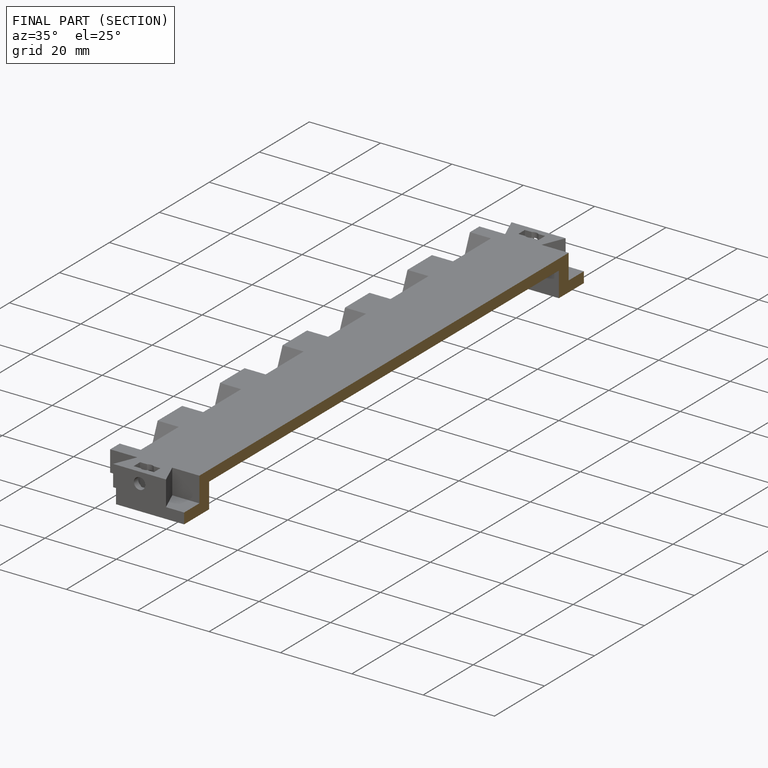
[diagram: finished part — half-section view (interior)]
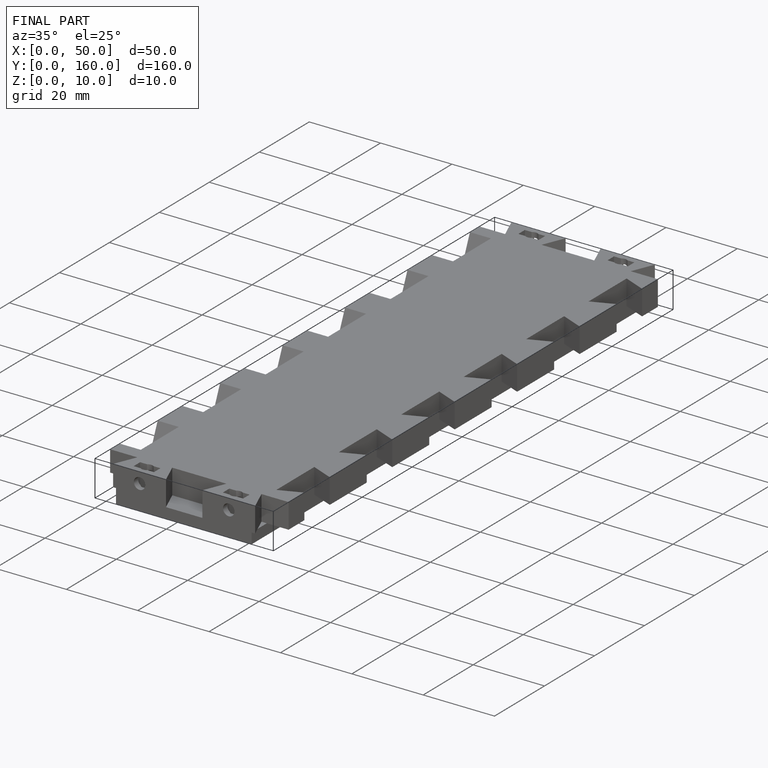
[diagram: finished part — iso view with bounding-box wireframe]
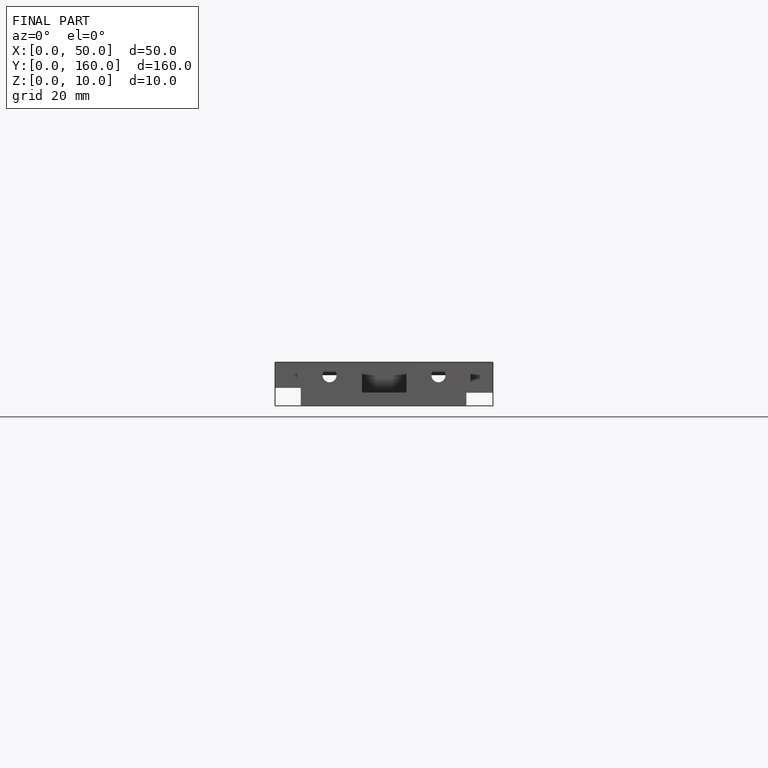
[diagram: finished part — front view with bounding-box wireframe]
